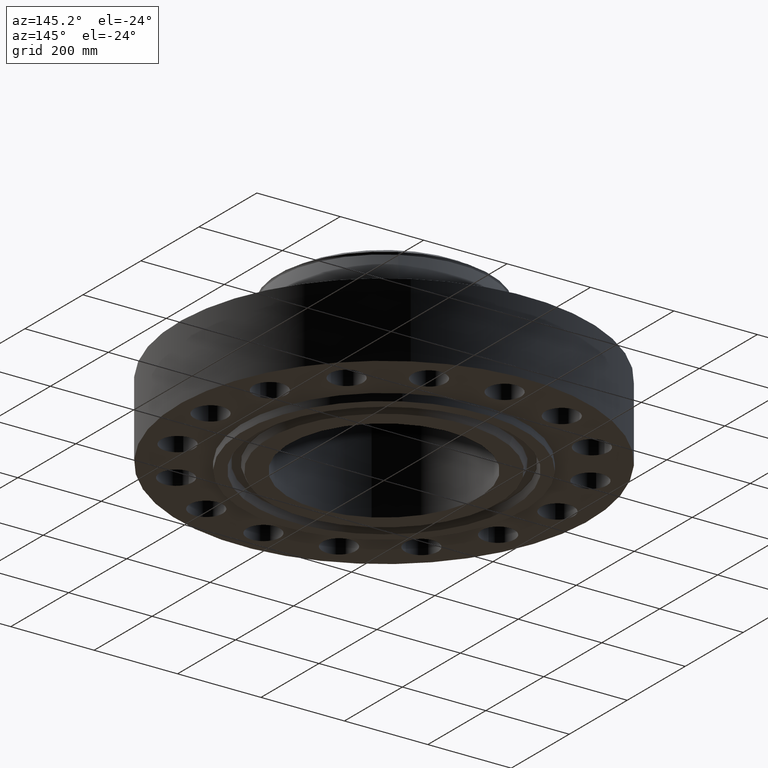
[diagram: clean part render]
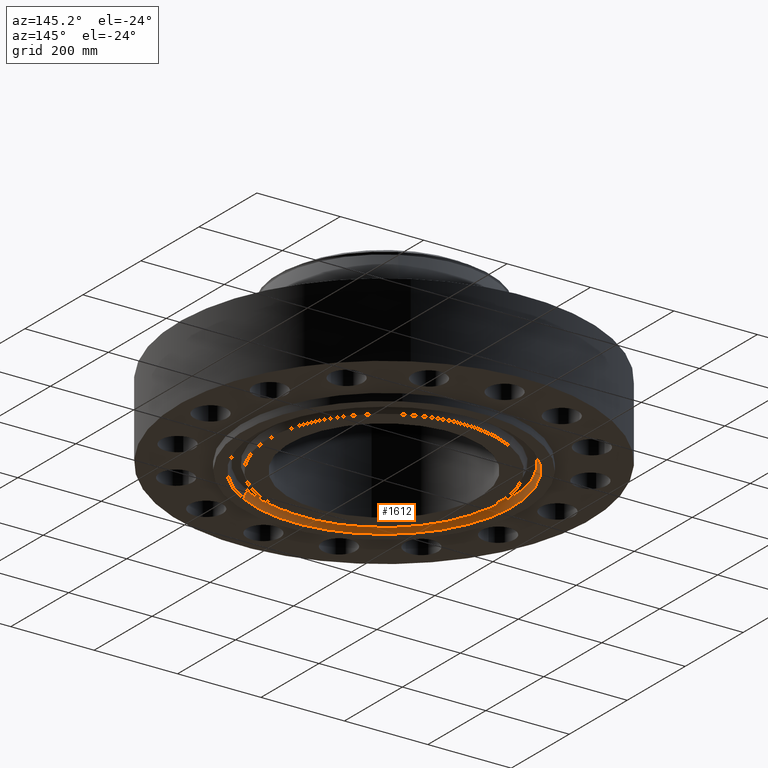
[diagram: same view with one face highlighted and labeled with its STEP entity id]
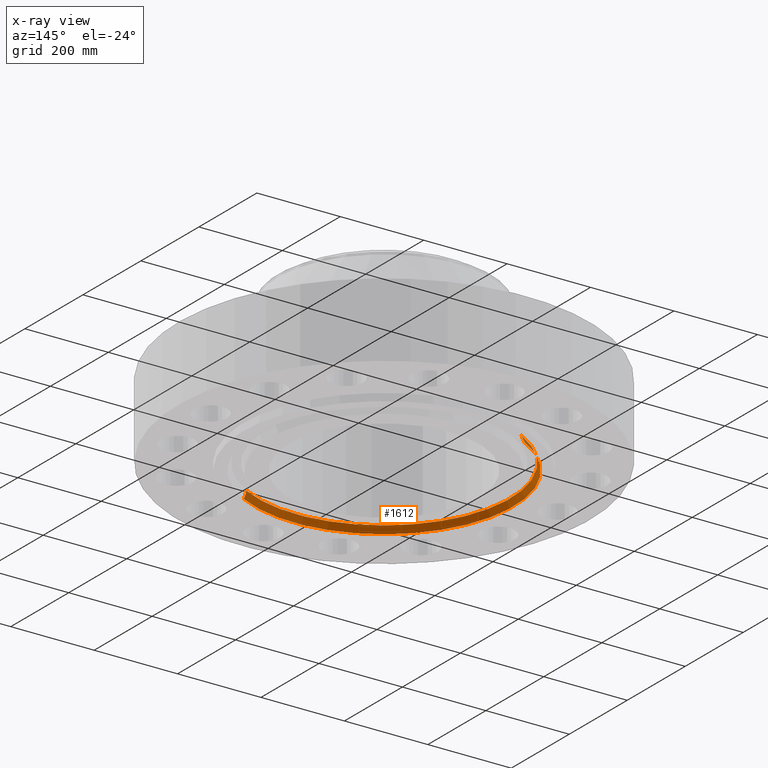
[diagram: x-ray of the same camera — body ghosted, the highlighted face saturated]
A machine part, auxiliary view. The second image highlights one B-rep face of the part: STEP entity #1612.
The next image is the same camera in x-ray: the body ghosted, the highlighted face saturated — about 0% of this face is hidden behind the body in this view.
In plain terms, the highlighted conical surface has half-angle 23 deg.
Its self-contained STEP definition (entity closure, byte-faithful):
#1511=AXIS2_PLACEMENT_3D('Circle Axis2P3D',#1509,#1510,$) ;
#1558=AXIS2_PLACEMENT_3D('Circle Axis2P3D',#1556,#1557,$) ;
#1594=AXIS2_PLACEMENT_3D('Cone Axis2P3D',#1591,#1592,#1593) ;
#1509=CARTESIAN_POINT('Axis2P3D Location',(-1.67844740731E-015,-1.1189649382E-015,-0.688000000003)) ;
#1513=CARTESIAN_POINT('Vertex',(5.82813656007,-10.6683324137,-0.688000000003)) ;
#1515=CARTESIAN_POINT('Vertex',(-5.82813656007,10.6683324137,-0.688000000003)) ;
#1556=CARTESIAN_POINT('Axis2P3D Location',(0.,0.,-0.0572712739222)) ;
#1560=CARTESIAN_POINT('Vertex',(-5.69978069889,10.4333785858,-0.0572712739222)) ;
#1562=CARTESIAN_POINT('Vertex',(5.69978069889,-10.4333785858,-0.0572712739222)) ;
#1591=CARTESIAN_POINT('Axis2P3D Location',(0.,0.,-0.0572712739222)) ;
#1596=CARTESIAN_POINT('Line Origine',(-5.76395862948,10.5508554997,-0.372635636962)) ;
#1601=CARTESIAN_POINT('Line Origine',(5.76395862948,-10.5508554997,-0.372635636962)) ;
#1510=DIRECTION('Axis2P3D Direction',(0.,0.,-0.0393700787402)) ;
#1557=DIRECTION('Axis2P3D Direction',(0.,0.,0.0393700787402)) ;
#1592=DIRECTION('Axis2P3D Direction',(-0.,-0.,-0.0393700787402)) ;
#1593=DIRECTION('Axis2P3D XDirection',(-0.0188750212049,0.0345504945626,0.)) ;
#1597=DIRECTION('Vector Direction',(-0.00737505833565,0.0134999537303,-0.0362403485611)) ;
#1602=DIRECTION('Vector Direction',(0.00737505833565,-0.0134999537303,-0.0362403485611)) ;
#1598=VECTOR('Line Direction',#1597,0.0393700787402) ;
#1603=VECTOR('Line Direction',#1602,0.0393700787402) ;
#1607=ORIENTED_EDGE('',*,*,#1517,.T.) ;
#1608=ORIENTED_EDGE('',*,*,#1600,.T.) ;
#1609=ORIENTED_EDGE('',*,*,#1564,.T.) ;
#1610=ORIENTED_EDGE('',*,*,#1605,.F.) ;
#1612=ADVANCED_FACE('PartBody',(#1611),#1595,.F.) ;
#1512=CIRCLE('generated circle',#1511,12.1565) ;
#1559=CIRCLE('generated circle',#1558,11.88877154) ;
#1595=CONICAL_SURFACE('Cone',#1594,11.88877154,0.401425727959) ;
#1517=EDGE_CURVE('',#1514,#1516,#1512,.T.) ;
#1564=EDGE_CURVE('',#1561,#1563,#1559,.T.) ;
#1600=EDGE_CURVE('',#1516,#1561,#1599,.F.) ;
#1605=EDGE_CURVE('',#1514,#1563,#1604,.F.) ;
#1606=EDGE_LOOP('',(#1607,#1608,#1609,#1610)) ;
#1611=FACE_OUTER_BOUND('',#1606,.T.) ;
#1599=LINE('Line',#1596,#1598) ;
#1604=LINE('Line',#1601,#1603) ;
#1514=VERTEX_POINT('',#1513) ;
#1516=VERTEX_POINT('',#1515) ;
#1561=VERTEX_POINT('',#1560) ;
#1563=VERTEX_POINT('',#1562) ;